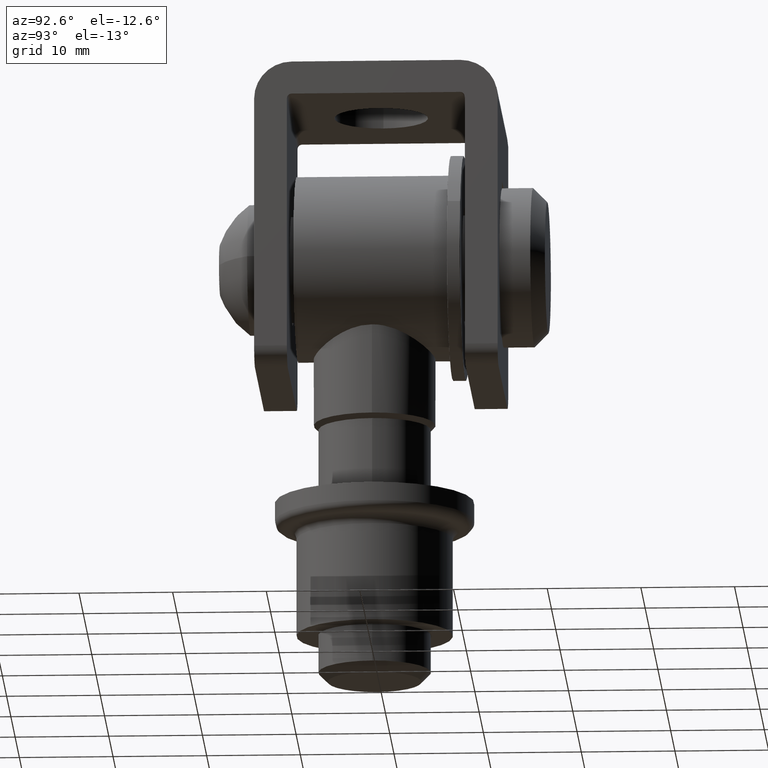
[diagram: clean part render]
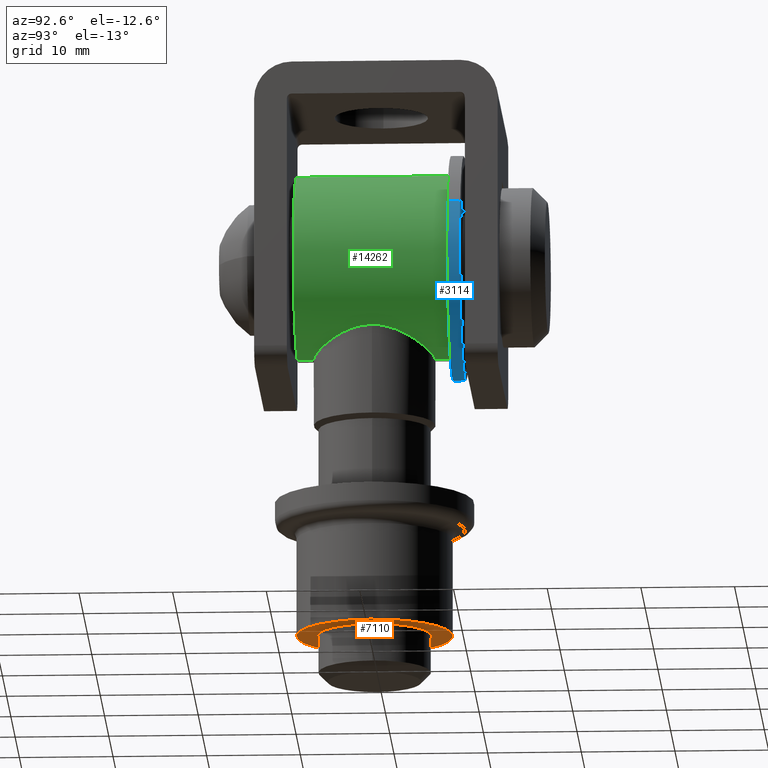
[diagram: same view with three faces highlighted in distinct colors, each labeled with its STEP entity id]
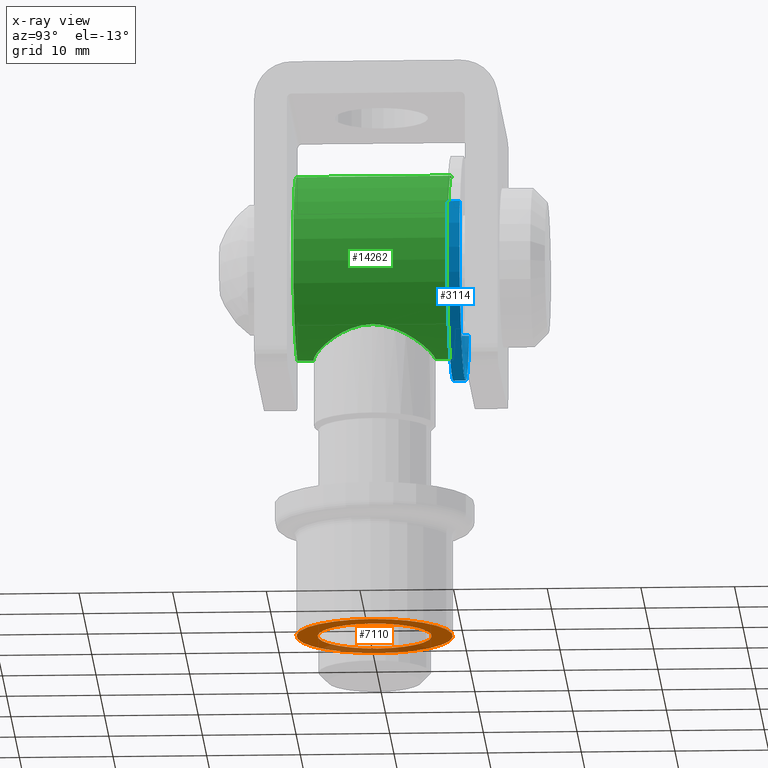
[diagram: x-ray of the same camera — body ghosted, the three highlighted faces saturated]
A machine part, auxiliary view with three faces highlighted in distinct colors.
The next image is the same camera in x-ray (body ghosted, the three faces saturated) — at least one of them is partly hidden behind the body in this view.
Their STEP definitions:

[orange] entity #7110 — the highlighted planar face has unit normal (0, 0, -1).
#99 = VERTEX_POINT ( 'NONE', #9031 ) ;
#684 = VERTEX_POINT ( 'NONE', #14006 ) ;
#825 = ORIENTED_EDGE ( 'NONE', *, *, #13067, .F. ) ;
#1139 = CIRCLE ( 'NONE', #10152, 6.100000000000008500 ) ;
#1233 = PLANE ( 'NONE',  #10637 ) ;
#1342 = CIRCLE ( 'NONE', #1959, 8.350000000000012100 ) ;
#1412 = EDGE_LOOP ( 'NONE', ( #825, #12902 ) ) ;
#1959 = AXIS2_PLACEMENT_3D ( 'NONE', #3081, #4154, #4101 ) ;
#2374 = CARTESIAN_POINT ( 'NONE',  ( -1.626303258728256700E-016, 14.49999999999999800, -6.505213034913026600E-016 ) ) ;
#2476 = CARTESIAN_POINT ( 'NONE',  ( -1.626303258728256700E-016, 14.49999999999999800, -8.350000000000012100 ) ) ;
#3081 = CARTESIAN_POINT ( 'NONE',  ( -1.626303258728256700E-016, 14.49999999999999800, -6.505213034913026600E-016 ) ) ;
#3654 = EDGE_CURVE ( 'NONE', #684, #99, #1139, .T. ) ;
#4101 = DIRECTION ( 'NONE',  ( 0.0000000000000000000, 0.0000000000000000000, -1.000000000000000000 ) ) ;
#4154 = DIRECTION ( 'NONE',  ( 3.755563391555109900E-033, -1.000000000000000000, -2.600005424922768400E-033 ) ) ;
#4323 = DIRECTION ( 'NONE',  ( 3.755563391555109900E-033, -1.000000000000000000, -2.600005424922768400E-033 ) ) ;
#4425 = ORIENTED_EDGE ( 'NONE', *, *, #3654, .T. ) ;
#4537 = AXIS2_PLACEMENT_3D ( 'NONE', #13861, #7161, #8320 ) ;
#5481 = VERTEX_POINT ( 'NONE', #2476 ) ;
#5861 = EDGE_CURVE ( 'NONE', #99, #684, #7154, .T. ) ;
#6149 = DIRECTION ( 'NONE',  ( 0.0000000000000000000, 0.0000000000000000000, 1.000000000000000000 ) ) ;
#6229 = EDGE_CURVE ( 'NONE', #7125, #5481, #9464, .T. ) ;
#6342 = AXIS2_PLACEMENT_3D ( 'NONE', #10978, #4323, #12046 ) ;
#6494 = EDGE_LOOP ( 'NONE', ( #4425, #13956 ) ) ;
#6658 = CARTESIAN_POINT ( 'NONE',  ( 1.022580077288038900E-015, 14.49999999999999800, 8.349999999999996100 ) ) ;
#7110 = ADVANCED_FACE ( 'NONE', ( #10634, #12730 ), #1233, .T. ) ;
#7125 = VERTEX_POINT ( 'NONE', #6658 ) ;
#7154 = CIRCLE ( 'NONE', #6342, 6.100000000000008500 ) ;
#7161 = DIRECTION ( 'NONE',  ( 3.755563391555109900E-033, -1.000000000000000000, -2.600005424922768400E-033 ) ) ;
#7723 = DIRECTION ( 'NONE',  ( -2.051328787785033900E-037, 2.407412430484040400E-033, 1.000000000000000000 ) ) ;
#8320 = DIRECTION ( 'NONE',  ( 0.0000000000000000000, 0.0000000000000000000, -1.000000000000000000 ) ) ;
#8346 = DIRECTION ( 'NONE',  ( 3.755563391555109900E-033, -1.000000000000000000, -2.600005424922768400E-033 ) ) ;
#9031 = CARTESIAN_POINT ( 'NONE',  ( 5.844042216070596700E-016, 14.49999999999999800, -6.099999999999998800 ) ) ;
#9464 = CIRCLE ( 'NONE', #4537, 8.350000000000012100 ) ;
#10152 = AXIS2_PLACEMENT_3D ( 'NONE', #11586, #8346, #6149 ) ;
#10634 = FACE_BOUND ( 'NONE', #6494, .T. ) ;
#10637 = AXIS2_PLACEMENT_3D ( 'NONE', #2374, #14423, #7723 ) ;
#10978 = CARTESIAN_POINT ( 'NONE',  ( -1.626303258728256700E-016, 14.49999999999999800, -6.505213034913026600E-016 ) ) ;
#11586 = CARTESIAN_POINT ( 'NONE',  ( -1.626303258728256700E-016, 14.49999999999999800, -6.505213034913026600E-016 ) ) ;
#12046 = DIRECTION ( 'NONE',  ( 0.0000000000000000000, 0.0000000000000000000, 1.000000000000000000 ) ) ;
#12730 = FACE_OUTER_BOUND ( 'NONE', #1412, .T. ) ;
#12902 = ORIENTED_EDGE ( 'NONE', *, *, #6229, .F. ) ;
#13067 = EDGE_CURVE ( 'NONE', #5481, #7125, #1342, .T. ) ;
#13861 = CARTESIAN_POINT ( 'NONE',  ( -1.626303258728256700E-016, 14.49999999999999800, -6.505213034913026600E-016 ) ) ;
#13956 = ORIENTED_EDGE ( 'NONE', *, *, #5861, .T. ) ;
#14006 = CARTESIAN_POINT ( 'NONE',  ( -1.626303258728256700E-016, 14.49999999999999800, 6.099999999999997000 ) ) ;
#14423 = DIRECTION ( 'NONE',  ( -3.755563391555109900E-033, 1.000000000000000000, -2.407412430484040400E-033 ) ) ;

[blue] entity #3114 — the highlighted cylindrical surface (partial cylindrical patch) has radius 12 mm, axis along (0, -1, 0).
#146 = ORIENTED_EDGE ( 'NONE', *, *, #875, .T. ) ;
#406 = VERTEX_POINT ( 'NONE', #7370 ) ;
#852 = ORIENTED_EDGE ( 'NONE', *, *, #14096, .T. ) ;
#875 = EDGE_CURVE ( 'NONE', #406, #3825, #10657, .T. ) ;
#975 = LINE ( 'NONE', #3662, #14213 ) ;
#1390 = CARTESIAN_POINT ( 'NONE',  ( 2.135709973751937000E-015, 0.6999999999999992900, 12.00000000000015600 ) ) ;
#1658 = CYLINDRICAL_SURFACE ( 'NONE', #9896, 12.00000000000015600 ) ;
#1970 = DIRECTION ( 'NONE',  ( -5.551115123125711200E-017, 0.0000000000000000000, -1.000000000000000000 ) ) ;
#2153 = AXIS2_PLACEMENT_3D ( 'NONE', #6204, #4018, #7297 ) ;
#2451 = VECTOR ( 'NONE', #12308, 1000.000000000000000 ) ;
#3114 = ADVANCED_FACE ( 'NONE', ( #6513 ), #1658, .T. ) ;
#3159 = DIRECTION ( 'NONE',  ( 0.0000000000000000000, -1.000000000000000000, 0.0000000000000000000 ) ) ;
#3527 = DIRECTION ( 'NONE',  ( -0.0000000000000000000, -1.000000000000000000, -0.0000000000000000000 ) ) ;
#3662 = CARTESIAN_POINT ( 'NONE',  ( -6.661338147750940200E-016, 0.6999999999999992900, -12.00000000000015600 ) ) ;
#3825 = VERTEX_POINT ( 'NONE', #3945 ) ;
#3945 = CARTESIAN_POINT ( 'NONE',  ( 2.135709973751909800E-015, 0.6499999999999978000, 12.00000000000000200 ) ) ;
#4018 = DIRECTION ( 'NONE',  ( 0.0000000000000000000, 1.000000000000000000, 0.0000000000000000000 ) ) ;
#4583 = CARTESIAN_POINT ( 'NONE',  ( 0.0000000000000000000, 0.6499999999999978000, 0.0000000000000000000 ) ) ;
#4659 = DIRECTION ( 'NONE',  ( 0.0000000000000000000, -1.000000000000000000, 0.0000000000000000000 ) ) ;
#4961 = EDGE_LOOP ( 'NONE', ( #146, #12982, #852, #12596 ) ) ;
#5821 = DIRECTION ( 'NONE',  ( 5.551115123125711200E-017, 0.0000000000000000000, 1.000000000000000000 ) ) ;
#6204 = CARTESIAN_POINT ( 'NONE',  ( 0.0000000000000000000, -0.6499999999999978000, 0.0000000000000000000 ) ) ;
#6513 = FACE_OUTER_BOUND ( 'NONE', #4961, .T. ) ;
#6679 = VERTEX_POINT ( 'NONE', #12790 ) ;
#7297 = DIRECTION ( 'NONE',  ( 5.551115123125711200E-017, 0.0000000000000000000, 1.000000000000000000 ) ) ;
#7370 = CARTESIAN_POINT ( 'NONE',  ( -6.661338147750854400E-016, 0.6499999999999978000, -12.00000000000000200 ) ) ;
#8104 = VERTEX_POINT ( 'NONE', #12392 ) ;
#8877 = LINE ( 'NONE', #1390, #2451 ) ;
#9786 = CARTESIAN_POINT ( 'NONE',  ( 0.0000000000000000000, 0.6999999999999992900, 0.0000000000000000000 ) ) ;
#9896 = AXIS2_PLACEMENT_3D ( 'NONE', #9786, #3159, #1970 ) ;
#10536 = AXIS2_PLACEMENT_3D ( 'NONE', #4583, #3527, #5821 ) ;
#10657 = CIRCLE ( 'NONE', #10536, 12.00000000000015600 ) ;
#10973 = EDGE_CURVE ( 'NONE', #3825, #6679, #8877, .T. ) ;
#12308 = DIRECTION ( 'NONE',  ( 0.0000000000000000000, -1.000000000000000000, 0.0000000000000000000 ) ) ;
#12392 = CARTESIAN_POINT ( 'NONE',  ( -6.661338147750854400E-016, -0.6499999999999978000, -12.00000000000000200 ) ) ;
#12404 = CIRCLE ( 'NONE', #2153, 12.00000000000015600 ) ;
#12596 = ORIENTED_EDGE ( 'NONE', *, *, #13746, .F. ) ;
#12790 = CARTESIAN_POINT ( 'NONE',  ( 2.135709973751909800E-015, -0.6499999999999978000, 12.00000000000000200 ) ) ;
#12982 = ORIENTED_EDGE ( 'NONE', *, *, #10973, .T. ) ;
#13746 = EDGE_CURVE ( 'NONE', #406, #8104, #975, .T. ) ;
#14096 = EDGE_CURVE ( 'NONE', #6679, #8104, #12404, .T. ) ;
#14213 = VECTOR ( 'NONE', #4659, 1000.000000000000000 ) ;

[green] entity #14262 — the highlighted cylindrical surface (partial cylindrical patch) has radius 9.9 mm, axis along (-0, -1, -0).
#261 = CARTESIAN_POINT ( 'NONE',  ( 1.212400331155879700E-015, 8.250000000000000000, 9.900000000000000400 ) ) ;
#339 = CARTESIAN_POINT ( 'NONE',  ( 5.821663792124556200, 2.921477588436589100, -8.010030696439866200 ) ) ;
#499 = CARTESIAN_POINT ( 'NONE',  ( 6.500000000000000900, 7.960204191157443000E-016, -7.467261881037787300 ) ) ;
#585 = CARTESIAN_POINT ( 'NONE',  ( 0.0000000000000000000, -8.250000000000000000, -9.900000000000000400 ) ) ;
#890 = CARTESIAN_POINT ( 'NONE',  ( 6.270242011933291300, -1.726229280715753500, -7.661639657829559800 ) ) ;
#1133 = CARTESIAN_POINT ( 'NONE',  ( -9.639573300245324700E-017, 6.500000000000000900, -9.900000000000000400 ) ) ;
#1200 = CARTESIAN_POINT ( 'NONE',  ( 2.738756891180094600, -5.898736706636947600, -9.515819560862928100 ) ) ;
#1432 = VECTOR ( 'NONE', #7933, 1000.000000000000000 ) ;
#1787 = LINE ( 'NONE', #261, #1432 ) ;
#1882 = CARTESIAN_POINT ( 'NONE',  ( 0.0000000000000000000, 8.250000000000000000, -9.900000000000000400 ) ) ;
#2082 = CARTESIAN_POINT ( 'NONE',  ( 6.500000000000000900, 7.960204191157443000E-016, -7.467261881037787300 ) ) ;
#2126 = CARTESIAN_POINT ( 'NONE',  ( 1.094648423392500700, -6.410889647241055500, -9.841665761327160300 ) ) ;
#2141 = EDGE_CURVE ( 'NONE', #12188, #7494, #1787, .T. ) ;
#2247 = DIRECTION ( 'NONE',  ( 0.0000000000000000000, 0.0000000000000000000, -1.000000000000000000 ) ) ;
#2274 = CARTESIAN_POINT ( 'NONE',  ( 1.212400331155879700E-015, 8.250000000000000000, 9.900000000000000400 ) ) ;
#2281 = CARTESIAN_POINT ( 'NONE',  ( 0.8748629992634987500, -6.444605869823986300, -9.863704344593880800 ) ) ;
#2418 = EDGE_CURVE ( 'NONE', #4014, #2574, #7564, .T. ) ;
#2528 = CARTESIAN_POINT ( 'NONE',  ( 6.500000000000002700, 0.2204906455669398100, -7.467261881037790000 ) ) ;
#2574 = VERTEX_POINT ( 'NONE', #499 ) ;
#2640 = EDGE_CURVE ( 'NONE', #7494, #2886, #12771, .T. ) ;
#2886 = VERTEX_POINT ( 'NONE', #585 ) ;
#3163 = CARTESIAN_POINT ( 'NONE',  ( 4.898684333977264800, -4.292405913961918200, -8.609418312284672600 ) ) ;
#3209 = CARTESIAN_POINT ( 'NONE',  ( 6.324616056291558800, -1.515530148649727700, -7.616592977699647300 ) ) ;
#3409 = EDGE_CURVE ( 'NONE', #2574, #8765, #8202, .T. ) ;
#3412 = CARTESIAN_POINT ( 'NONE',  ( 3.303316356128946500, -5.602031949478984500, -9.334681144096054000 ) ) ;
#3564 = ORIENTED_EDGE ( 'NONE', *, *, #2418, .F. ) ;
#4014 = VERTEX_POINT ( 'NONE', #1133 ) ;
#4448 = DIRECTION ( 'NONE',  ( -0.0000000000000000000, -1.000000000000000000, -0.0000000000000000000 ) ) ;
#4481 = CARTESIAN_POINT ( 'NONE',  ( 2.147302784279244000, -6.150010319135664500, -9.672927976997344900 ) ) ;
#4529 = EDGE_LOOP ( 'NONE', ( #13299, #4874, #4806, #6861, #13754, #3564, #11112 ) ) ;
#4626 = CIRCLE ( 'NONE', #5605, 9.900000000000000400 ) ;
#4806 = ORIENTED_EDGE ( 'NONE', *, *, #2640, .T. ) ;
#4874 = ORIENTED_EDGE ( 'NONE', *, *, #2141, .T. ) ;
#5062 = DIRECTION ( 'NONE',  ( 0.0000000000000000000, 0.0000000000000000000, 1.000000000000000000 ) ) ;
#5227 = CARTESIAN_POINT ( 'NONE',  ( 4.313691038763470200, -4.879951470687109900, -8.916908741371566200 ) ) ;
#5262 = DIRECTION ( 'NONE',  ( 0.0000000000000000000, 0.0000000000000000000, 1.000000000000000000 ) ) ;
#5351 = CARTESIAN_POINT ( 'NONE',  ( 0.0000000000000000000, 8.250000000000000000, -9.900000000000000400 ) ) ;
#5422 = CARTESIAN_POINT ( 'NONE',  ( 6.070125338414132300, -2.334127585657744100, -7.821394716511675500 ) ) ;
#5605 = AXIS2_PLACEMENT_3D ( 'NONE', #8477, #12977, #5262 ) ;
#5689 = EDGE_CURVE ( 'NONE', #12188, #8649, #4626, .T. ) ;
#5707 = CARTESIAN_POINT ( 'NONE',  ( 4.318987865937044600, 4.875010813718958500, -8.914250593038753200 ) ) ;
#5872 = VECTOR ( 'NONE', #9563, 1000.000000000000000 ) ;
#6181 = CARTESIAN_POINT ( 'NONE',  ( 0.0000000000000000000, -8.250000000000000000, 0.0000000000000000000 ) ) ;
#6509 = FACE_OUTER_BOUND ( 'NONE', #4529, .T. ) ;
#6713 = CARTESIAN_POINT ( 'NONE',  ( 0.2187118630291587900, -6.500000000000000000, -9.899999999999998600 ) ) ;
#6797 = CARTESIAN_POINT ( 'NONE',  ( 6.410625891946173400, 1.095756660615100400, -7.544342683652133500 ) ) ;
#6861 = ORIENTED_EDGE ( 'NONE', *, *, #14457, .F. ) ;
#6934 = CARTESIAN_POINT ( 'NONE',  ( 4.001609968040122900, 5.139490844229884600, -9.062973413081062200 ) ) ;
#7318 = AXIS2_PLACEMENT_3D ( 'NONE', #13400, #4448, #2247 ) ;
#7494 = VERTEX_POINT ( 'NONE', #11217 ) ;
#7527 = CARTESIAN_POINT ( 'NONE',  ( 6.455699322052121000, -0.8742687385036193000, -7.506462126263862400 ) ) ;
#7564 = B_SPLINE_CURVE_WITH_KNOTS ( 'NONE', 3,
 ( #11051, #7863, #7728, #9985, #9897, #11104, #8934, #6934, #5707, #10311, #8013, #13545, #339, #12434, #13586, #6797, #13492, #12485, #2528, #7917 ),
 .UNSPECIFIED., .F., .F.,
 ( 4, 2, 2, 2, 2, 2, 2, 2, 2, 4 ),
 ( 9.335536337761490900E-020, 0.001312001091473372000, 0.002624002182946744000, 0.003936003274420115500, 0.005248004365893488800, 0.006560005457366862100, 0.007872006548840232800, 0.009184007640313605200, 0.009840008186050292300, 0.01049600873178697800 ),
 .UNSPECIFIED. ) ;
#7670 = CARTESIAN_POINT ( 'NONE',  ( -2.565649061511463400E-017, -6.500000000000000900, -9.900000000000000400 ) ) ;
#7728 = CARTESIAN_POINT ( 'NONE',  ( 0.8790489917695659700, 6.454924109358231900, -9.870240214287939300 ) ) ;
#7863 = CARTESIAN_POINT ( 'NONE',  ( 0.4443981167058217400, 6.500000000000002700, -9.900000000000002100 ) ) ;
#7917 = CARTESIAN_POINT ( 'NONE',  ( 6.500000000000000900, 7.960204191157443000E-016, -7.467261881037787300 ) ) ;
#7933 = DIRECTION ( 'NONE',  ( -0.0000000000000000000, -1.000000000000000000, -0.0000000000000000000 ) ) ;
#8013 = CARTESIAN_POINT ( 'NONE',  ( 5.164176821659729900, 3.968799003888578100, -8.450833095314893100 ) ) ;
#8202 = B_SPLINE_CURVE_WITH_KNOTS ( 'NONE', 3,
 ( #2082, #11960, #7527, #3209, #890, #10759, #5422, #8679, #13194, #9794, #3163, #5227, #12991, #14378, #3412, #10992, #1200, #4481, #8931, #2126, #2281, #11101, #6713, #7670 ),
 .UNSPECIFIED., .F., .F.,
 ( 4, 2, 2, 2, 2, 2, 2, 2, 2, 2, 2, 4 ),
 ( 0.01049600873178697800, 0.01180658033478941200, 0.01246186613629062800, 0.01311715193779184600, 0.01442772354079427900, 0.01573829514379671000, 0.01704886674679914300, 0.01770415254830036100, 0.01835943834980157500, 0.01967000995280401100, 0.02032529575430523000, 0.02098058155580644400 ),
 .UNSPECIFIED. ) ;
#8440 = VECTOR ( 'NONE', #13868, 1000.000000000000000 ) ;
#8477 = CARTESIAN_POINT ( 'NONE',  ( 0.0000000000000000000, 8.250000000000000000, 0.0000000000000000000 ) ) ;
#8649 = VERTEX_POINT ( 'NONE', #5351 ) ;
#8656 = LINE ( 'NONE', #1882, #5872 ) ;
#8679 = CARTESIAN_POINT ( 'NONE',  ( 5.823732204700065500, -2.917607932653441400, -8.008538627619612900 ) ) ;
#8765 = VERTEX_POINT ( 'NONE', #14451 ) ;
#8931 = CARTESIAN_POINT ( 'NONE',  ( 1.736852262820719000, -6.278884389514380400, -9.756018897644397100 ) ) ;
#8934 = CARTESIAN_POINT ( 'NONE',  ( 3.305180525723187200, 5.612756022367361400, -9.339494157335952500 ) ) ;
#8985 = CYLINDRICAL_SURFACE ( 'NONE', #7318, 9.900000000000000400 ) ;
#9563 = DIRECTION ( 'NONE',  ( -0.0000000000000000000, -1.000000000000000000, -0.0000000000000000000 ) ) ;
#9794 = CARTESIAN_POINT ( 'NONE',  ( 5.160884868440580100, -3.973126067454620300, -8.452861933694780600 ) ) ;
#9897 = CARTESIAN_POINT ( 'NONE',  ( 2.150172376876911400, 6.148865390358717600, -9.672207789847398400 ) ) ;
#9985 = CARTESIAN_POINT ( 'NONE',  ( 1.730323228341932500, 6.280505864416147300, -9.757066697688312500 ) ) ;
#10311 = CARTESIAN_POINT ( 'NONE',  ( 4.899380493543696400, 4.291323502076225300, -8.608925054911718900 ) ) ;
#10759 = CARTESIAN_POINT ( 'NONE',  ( 6.143111409634526500, -2.134943705728981300, -7.763944831299229000 ) ) ;
#10992 = CARTESIAN_POINT ( 'NONE',  ( 2.932452569189868600, -5.804772419406643500, -9.457742486453263100 ) ) ;
#11051 = CARTESIAN_POINT ( 'NONE',  ( -9.639573300245324700E-017, 6.500000000000000900, -9.900000000000000400 ) ) ;
#11101 = CARTESIAN_POINT ( 'NONE',  ( 0.4374268195127357100, -6.488989741278765600, -9.892760304516205100 ) ) ;
#11104 = CARTESIAN_POINT ( 'NONE',  ( 2.934957171404633000, 5.815308525010198800, -9.463660559333780100 ) ) ;
#11112 = ORIENTED_EDGE ( 'NONE', *, *, #11950, .F. ) ;
#11217 = CARTESIAN_POINT ( 'NONE',  ( 1.212400331155879700E-015, -8.250000000000000000, 9.900000000000000400 ) ) ;
#11701 = CARTESIAN_POINT ( 'NONE',  ( 0.0000000000000000000, 8.250000000000000000, -9.900000000000000400 ) ) ;
#11950 = EDGE_CURVE ( 'NONE', #8649, #4014, #8656, .T. ) ;
#11960 = CARTESIAN_POINT ( 'NONE',  ( 6.500000000000000900, -0.4405008207473279400, -7.467261881037790900 ) ) ;
#11996 = AXIS2_PLACEMENT_3D ( 'NONE', #6181, #14075, #5062 ) ;
#12188 = VERTEX_POINT ( 'NONE', #2274 ) ;
#12434 = CARTESIAN_POINT ( 'NONE',  ( 6.149541987078152700, 2.147075675758598900, -7.761152905052565400 ) ) ;
#12485 = CARTESIAN_POINT ( 'NONE',  ( 6.488547960976117900, 0.4438064403871684900, -7.477273452982558400 ) ) ;
#12771 = CIRCLE ( 'NONE', #11996, 9.900000000000000400 ) ;
#12977 = DIRECTION ( 'NONE',  ( 0.0000000000000000000, 1.000000000000000000, 0.0000000000000000000 ) ) ;
#12991 = CARTESIAN_POINT ( 'NONE',  ( 3.996599230682439200, -5.142908321113266900, -9.064968681030718400 ) ) ;
#13194 = CARTESIAN_POINT ( 'NONE',  ( 5.622115666889950300, -3.288202974467501000, -8.153368808260532700 ) ) ;
#13299 = ORIENTED_EDGE ( 'NONE', *, *, #5689, .F. ) ;
#13400 = CARTESIAN_POINT ( 'NONE',  ( 0.0000000000000000000, 8.250000000000000000, 0.0000000000000000000 ) ) ;
#13492 = CARTESIAN_POINT ( 'NONE',  ( 6.443802621373349900, 0.8806966419820115900, -7.515868593139913400 ) ) ;
#13545 = CARTESIAN_POINT ( 'NONE',  ( 5.624375666470847100, 3.284278633283903600, -8.151791251783114600 ) ) ;
#13586 = CARTESIAN_POINT ( 'NONE',  ( 6.280049245999349800, 1.731533831871364200, -7.654012339112580500 ) ) ;
#13754 = ORIENTED_EDGE ( 'NONE', *, *, #3409, .F. ) ;
#13868 = DIRECTION ( 'NONE',  ( -0.0000000000000000000, -1.000000000000000000, -0.0000000000000000000 ) ) ;
#14075 = DIRECTION ( 'NONE',  ( 0.0000000000000000000, 1.000000000000000000, 0.0000000000000000000 ) ) ;
#14195 = LINE ( 'NONE', #11701, #8440 ) ;
#14262 = ADVANCED_FACE ( 'NONE', ( #6509 ), #8985, .T. ) ;
#14378 = CARTESIAN_POINT ( 'NONE',  ( 3.481594243042730200, -5.492866226236409400, -9.269445354307963600 ) ) ;
#14451 = CARTESIAN_POINT ( 'NONE',  ( -2.565649061511463400E-017, -6.500000000000000900, -9.900000000000000400 ) ) ;
#14457 = EDGE_CURVE ( 'NONE', #8765, #2886, #14195, .T. ) ;